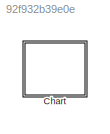
MODEL slx_92f932b39e0e
KIND model
CONFIG AbsTol = auto
CONFIG EnableMultiTasking = off
CONFIG FixedStep = auto
CONFIG MaxStep = auto
CONFIG MinStep = auto
CONFIG RelTol = 1e-3
CONFIG SampleTimeConstraint = Unconstrained
CONFIG Solver = VariableStepAuto
CONFIG SolverName = VariableStepAuto
CONFIG StartTime = 0.0
CONFIG StopTime = 10.0
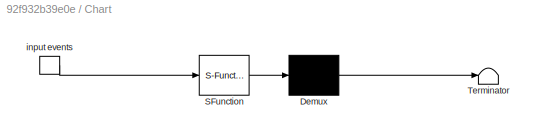
BLOCK [SubSystem] Chart
  ErrorFcn = Stateflow.Translate.translate
  PermitHierarchicalResolution = ExplicitOnly
  Ports = [0, 0, 0, 1]
  RequestExecContextInheritance = off
  SFBlockType = Chart
  TreatAsAtomicUnit = on
  Variant = off
BLOCK [Demux] Chart/ Demux 
  Outputs = 1
  Ports = [1, 1]
BLOCK [S-Function] Chart/ SFunction 
  EnableBusSupport = on
  FunctionName = sf_sfun
  PortCounts = [1 1]
  Ports = [1, 1]
  SFcnIsStateOwnerBlock = off
  SFunctionDeploymentMode = off
  Tag = Stateflow S-Function test_01 3
BLOCK [Terminator] Chart/ Terminator 
BLOCK [TriggerPort] Chart/input events
  Ports = [0, 1]
  ShowOutputPort = on
  StatesWhenEnabling = held
  VariantControl = (inherit)
CHART Chart states=7 transitions=7
  STATE_LABEL 'L1_A'
  STATE_LABEL 'L2_A'
  STATE_LABEL 'L2_B'
  STATE_LABEL 'Event_B'
  STATE_LABEL 'L2_A'
  STATE_LABEL 'L2_B'
  STATE_LABEL 'L1_B'
  STATE_LABEL 'L2_C'
  STATE_LABEL 'L2_D'
  STATE_LABEL 'Event_B'
  STATE_LABEL 'L2_C'
  STATE_LABEL 'L2_D'
  STATE_LABEL 'cyc = 11'
